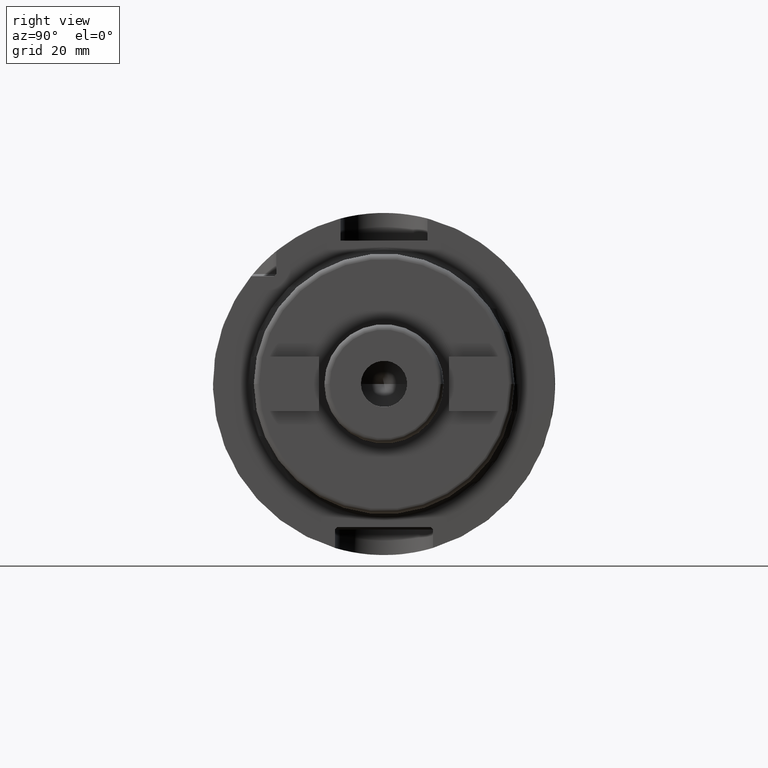
[diagram: clean part render]
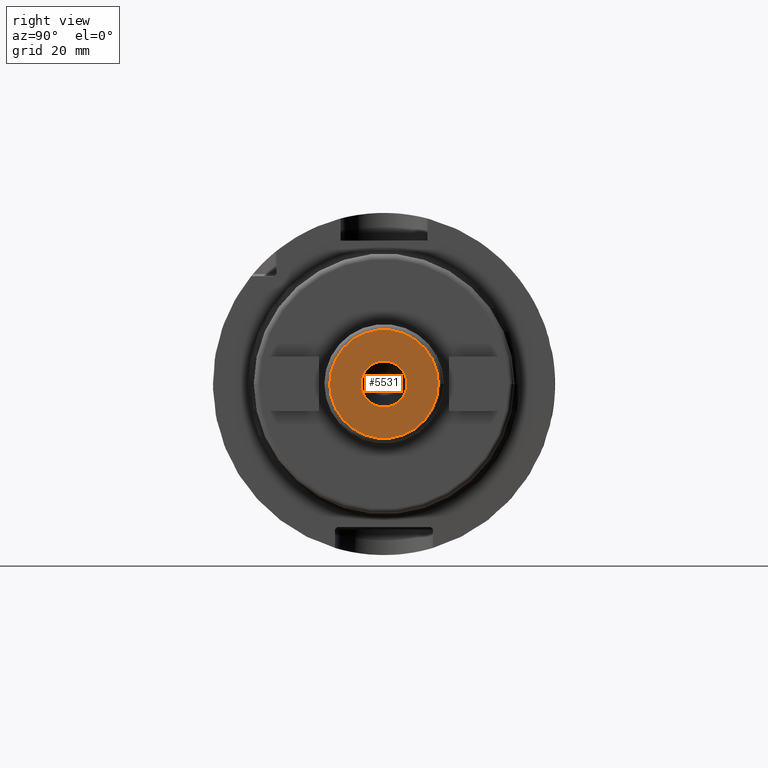
[diagram: same view with one face highlighted and labeled with its STEP entity id]
A machine part, right view. The second image highlights one B-rep face of the part: STEP entity #5531.
In plain terms, the highlighted planar face has unit normal (1, 0, 0).
Its self-contained STEP definition (entity closure, byte-faithful):
#2084=CARTESIAN_POINT('',(6.9E1,0.E0,0.E0));
#2085=DIRECTION('',(-1.E0,0.E0,0.E0));
#2086=DIRECTION('',(0.E0,1.E0,0.E0));
#2087=AXIS2_PLACEMENT_3D('',#2084,#2085,#2086);
#2089=CARTESIAN_POINT('',(6.9E1,0.E0,0.E0));
#2090=DIRECTION('',(-1.E0,0.E0,0.E0));
#2091=DIRECTION('',(0.E0,-1.E0,0.E0));
#2092=AXIS2_PLACEMENT_3D('',#2089,#2090,#2091);
#2094=CARTESIAN_POINT('',(6.9E1,0.E0,0.E0));
#2095=DIRECTION('',(1.E0,0.E0,0.E0));
#2096=DIRECTION('',(0.E0,-1.E0,0.E0));
#2097=AXIS2_PLACEMENT_3D('',#2094,#2095,#2096);
#2099=CARTESIAN_POINT('',(6.9E1,0.E0,0.E0));
#2100=DIRECTION('',(1.E0,0.E0,0.E0));
#2101=DIRECTION('',(0.E0,1.E0,0.E0));
#2102=AXIS2_PLACEMENT_3D('',#2099,#2100,#2101);
#3214=CARTESIAN_POINT('',(6.9E1,1.E1,0.E0));
#3215=CARTESIAN_POINT('',(6.9E1,-1.E1,0.E0));
#3216=VERTEX_POINT('',#3214);
#3217=VERTEX_POINT('',#3215);
#3256=CARTESIAN_POINT('',(6.9E1,-4.25E0,0.E0));
#3257=CARTESIAN_POINT('',(6.9E1,4.25E0,0.E0));
#3258=VERTEX_POINT('',#3256);
#3259=VERTEX_POINT('',#3257);
#5516=CARTESIAN_POINT('',(6.9E1,0.E0,0.E0));
#5517=DIRECTION('',(1.E0,0.E0,0.E0));
#5518=DIRECTION('',(0.E0,-1.E0,0.E0));
#5519=AXIS2_PLACEMENT_3D('',#5516,#5517,#5518);
#5520=PLANE('',#5519);
#5521=ORIENTED_EDGE('',*,*,#5498,.T.);
#5522=ORIENTED_EDGE('',*,*,#5483,.T.);
#5523=EDGE_LOOP('',(#5521,#5522));
#5524=FACE_OUTER_BOUND('',#5523,.F.);
#5526=ORIENTED_EDGE('',*,*,#5525,.T.);
#5528=ORIENTED_EDGE('',*,*,#5527,.T.);
#5529=EDGE_LOOP('',(#5526,#5528));
#5530=FACE_BOUND('',#5529,.F.);
#5531=ADVANCED_FACE('',(#5524,#5530),#5520,.T.);
#2088=CIRCLE('',#2087,1.E1);
#2093=CIRCLE('',#2092,1.E1);
#2098=CIRCLE('',#2097,4.25E0);
#2103=CIRCLE('',#2102,4.25E0);
#5483=EDGE_CURVE('',#3217,#3216,#2093,.T.);
#5498=EDGE_CURVE('',#3216,#3217,#2088,.T.);
#5525=EDGE_CURVE('',#3258,#3259,#2098,.T.);
#5527=EDGE_CURVE('',#3259,#3258,#2103,.T.);